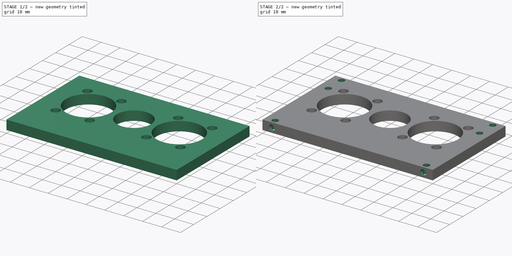
[diagram: build sequence overview — one tinted view per stage of 2, left to right]
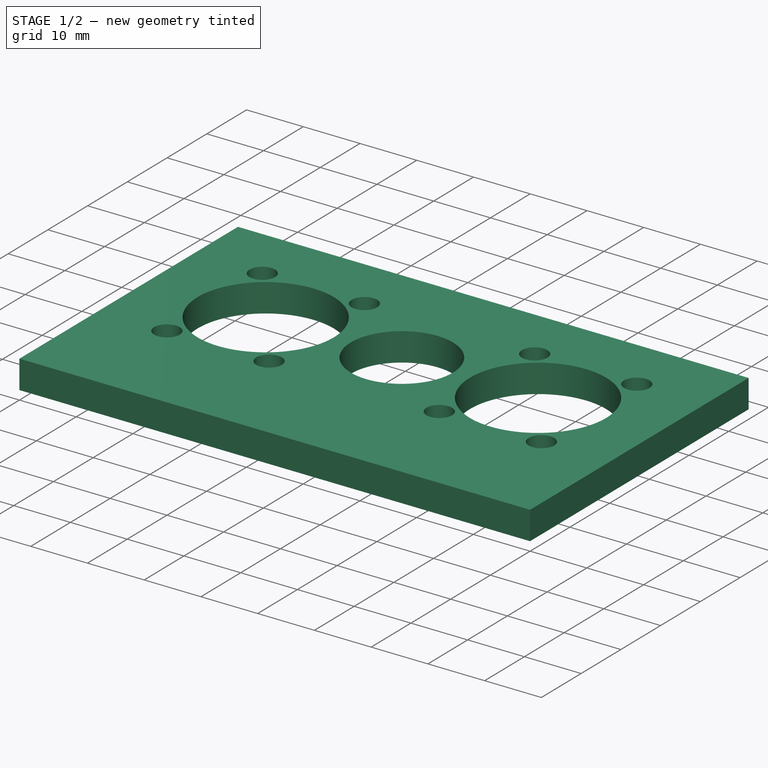
[diagram: stage 1 of 2 — iso view after this stage's code; geometry added in this stage tinted green]
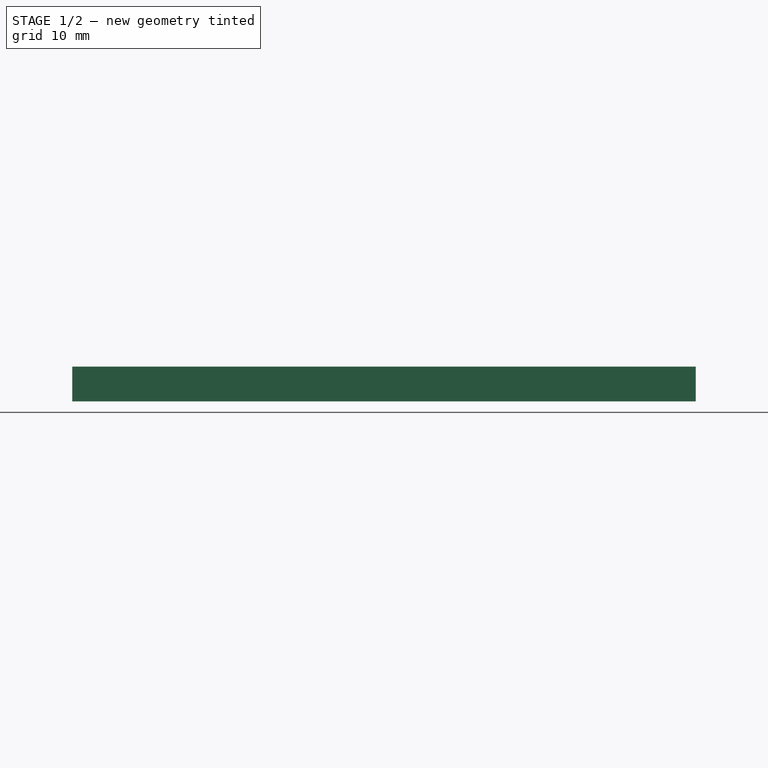
[diagram: stage 1 of 2 — front view after this stage's code; geometry added in this stage tinted green]
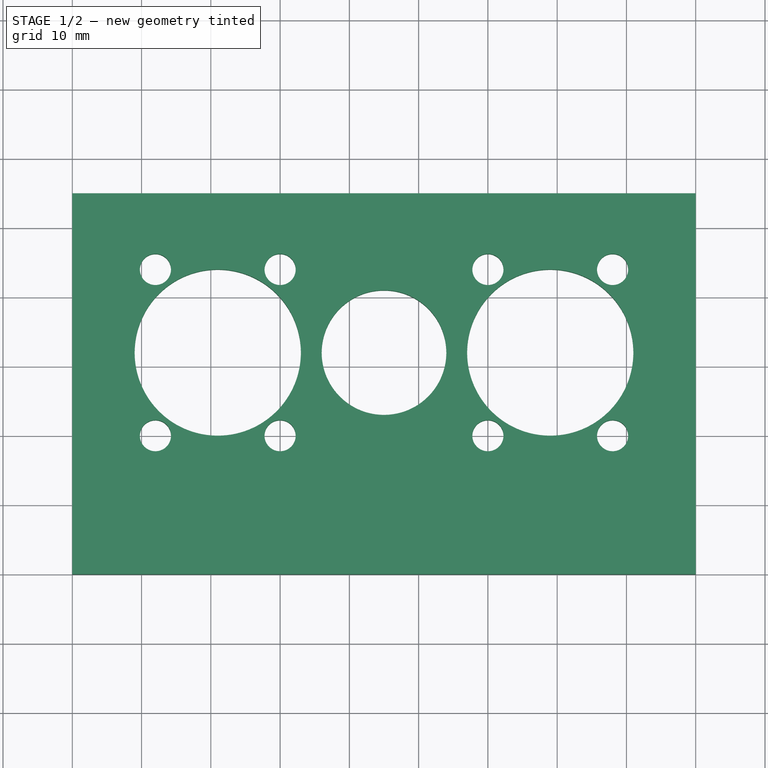
[diagram: stage 1 of 2 — top view after this stage's code; geometry added in this stage tinted green]
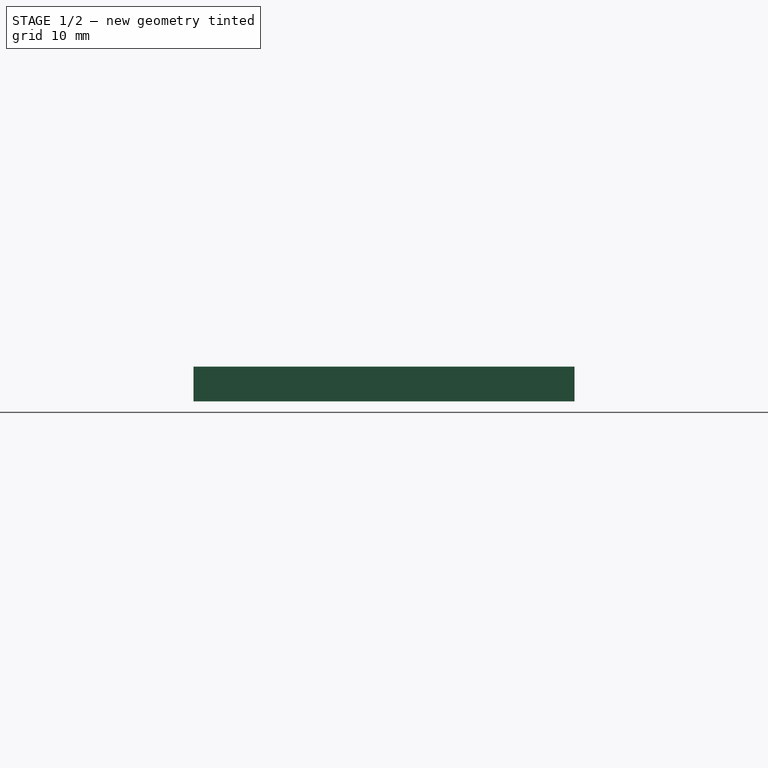
[diagram: stage 1 of 2 — right view after this stage's code; geometry added in this stage tinted green]
FCSTD DOCUMENT  (FreeCAD 0.17RUnknown)
Label: motor_plate
License: All rights reserved
LicenseURL: http://en.wikipedia.org/wiki/All_rights_reserved
objects: Sketcher::SketchObject×4, PartDesign::Pocket×3, PartDesign::Pad×1, PartDesign::Body×1
note: 13 computed .brp shape members not serialized (recipe doc carries the construction recipe); baked Part::Feature solids carry a one-line shape summary decoded from their .brp

FEATURE [Sketcher::SketchObject] Sketch
  MapMode = 5
  Support = -> [XY_Plane]
  sketch-geometry (4):
    g0: LineSegment StartX=0 StartY=0 StartZ=0 EndX=90 EndY=0 EndZ=0
    g1: LineSegment StartX=90 StartY=0 StartZ=0 EndX=90 EndY=55 EndZ=0
    g2: LineSegment StartX=90 StartY=55 StartZ=0 EndX=0 EndY=55 EndZ=0
    g3: LineSegment StartX=0 StartY=55 StartZ=0 EndX=0 EndY=0 EndZ=0
  constraints (11):
    c: Coincident(g0,g1)
    c: Coincident(g1,g2)
    c: Coincident(g2,g3)
    c: Coincident(g3,g0)
    c: Horizontal(g0)
    c: Horizontal(g2)
    c: Vertical(g1)
    c: Vertical(g3)
    c: Coincident(g0,g-1)
    c: DistanceX(g0,g0) = 90
    c: DistanceY(g3,g3) = 55
FEATURE [PartDesign::Pad] Pad
  Length = 5
  Length2 = 100
  Profile = -> Sketch
  Type = 0
FEATURE [Sketcher::SketchObject] Sketch001
  ExternalGeometry = -> [Pad]
  MapMode = 5
  Placement = pos=(0,0,5) rot=(0,0,1;0rad)
  Support = -> [Pad]
  sketch-geometry (24):
    g0: Circle CenterX=45 CenterY=32 CenterZ=0 NormalX=0 NormalY=0 NormalZ=1 AngleXU=0 Radius=9
    g1: Circle CenterX=21 CenterY=32 CenterZ=0 NormalX=0 NormalY=0 NormalZ=1 AngleXU=0 Radius=12
    g2: Circle CenterX=69 CenterY=32 CenterZ=0 NormalX=0 NormalY=0 NormalZ=1 AngleXU=0 Radius=12
    g3: LineSegment [constr] StartX=69 StartY=32 StartZ=0 EndX=21 EndY=32 EndZ=0
    g4: LineSegment [constr] StartX=21 StartY=32 StartZ=0 EndX=0 EndY=0 EndZ=0
    g5: LineSegment [constr] StartX=69 StartY=32 StartZ=0 EndX=90 EndY=0 EndZ=0
    g6: Circle [constr] CenterX=21 CenterY=32 CenterZ=0 NormalX=0 NormalY=0 NormalZ=1 AngleXU=0 Radius=15
    g7: Circle CenterX=12 CenterY=44 CenterZ=0 NormalX=0 NormalY=0 NormalZ=1 AngleXU=0 Radius=2.25
    g8: Circle CenterX=30 CenterY=44 CenterZ=0 NormalX=0 NormalY=0 NormalZ=1 AngleXU=0 Radius=2.25
    g9: Circle CenterX=30 CenterY=20 CenterZ=0 NormalX=0 NormalY=0 NormalZ=1 AngleXU=0 Radius=2.25
    g10: Circle CenterX=12 CenterY=20 CenterZ=0 NormalX=0 NormalY=0 NormalZ=1 AngleXU=0 Radius=2.25
    g11: LineSegment [constr] StartX=12 StartY=20 StartZ=0 EndX=30 EndY=20 EndZ=0
    g12: LineSegment [constr] StartX=30 StartY=20 StartZ=0 EndX=30 EndY=44 EndZ=0
    g13: LineSegment [constr] StartX=30 StartY=44 StartZ=0 EndX=12 EndY=44 EndZ=0
    g14: LineSegment [constr] StartX=12 StartY=44 StartZ=0 EndX=12 EndY=20 EndZ=0
    g15: Circle [constr] CenterX=69 CenterY=32 CenterZ=0 NormalX=0 NormalY=0 NormalZ=1 AngleXU=0 Radius=15
    g16: Circle CenterX=60 CenterY=44 CenterZ=0 NormalX=0 NormalY=0 NormalZ=1 AngleXU=0 Radius=2.25
    g17: Circle CenterX=78 CenterY=44 CenterZ=0 NormalX=0 NormalY=0 NormalZ=1 AngleXU=0 Radius=2.25
    g18: Circle CenterX=78 CenterY=20 CenterZ=0 NormalX=0 NormalY=0 NormalZ=1 AngleXU=0 Radius=2.25
    g19: Circle CenterX=60 CenterY=20 CenterZ=0 NormalX=0 NormalY=0 NormalZ=1 AngleXU=0 Radius=2.25
    g20: LineSegment [constr] StartX=60 StartY=20 StartZ=0 EndX=78 EndY=20 EndZ=0
    g21: LineSegment [constr] StartX=78 StartY=20 StartZ=0 EndX=78 EndY=44 EndZ=0
    g22: LineSegment [constr] StartX=78 StartY=44 StartZ=0 EndX=60 EndY=44 EndZ=0
    g23: LineSegment [constr] StartX=60 StartY=44 StartZ=0 EndX=60 EndY=20 EndZ=0
  constraints (60):
    c: DistanceX(g0,g2) = 24
    c: DistanceX(g1,g0) = 24
    c: Radius(g1) = 12
    c: Equal(g2,g1)
    c: Radius(g0) = 9
    c: Coincident(g4,g1)
    c: Coincident(g4,g-1)
    c: Coincident(g5,g2)
    c: Coincident(g5,g-3)
    c: Equal(g5,g4)
    c: Coincident(g3,g1)
    c: Horizontal(g3)
    c: Coincident(g3,g2)
    c: DistanceY(g-1,g1) = 32
    c: PointOnObject(g0,g3)
    c: Coincident(g6,g1)
    c: Radius(g6) = 15
    c: PointOnObject(g7,g6)
    c: PointOnObject(g8,g6)
    c: PointOnObject(g9,g6)
    c: PointOnObject(g10,g6)
    c: Coincident(g11,g10)
    c: Coincident(g11,g9)
    c: Coincident(g12,g9)
    c: Coincident(g12,g8)
    c: Coincident(g13,g8)
    c: Coincident(g13,g7)
    c: Tangent(g13,g1)
    c: Coincident(g14,g10)
    c: Horizontal(g11)
    c: Horizontal(g13)
    c: Vertical(g14)
    c: Vertical(g12)
    c: Coincident(g14,g7)
    c: Radius(g7) = 2.25
    c: Equal(g7,g8)
    c: Equal(g7,g10)
    c: Equal(g7,g9)
    c: Coincident(g15,g2)
    c: PointOnObject(g16,g15)
    c: PointOnObject(g17,g15)
    c: PointOnObject(g18,g15)
    c: PointOnObject(g19,g15)
    c: Coincident(g20,g19)
    c: Coincident(g20,g18)
    c: Coincident(g20,g21)
    c: Coincident(g21,g17)
    c: Coincident(g21,g22)
    c: Coincident(g22,g16)
    c: Tangent(g22,g2)
    c: Coincident(g22,g23)
    c: Coincident(g23,g20)
    c: Vertical(g23)
    c: Horizontal(g20)
    c: Horizontal(g22)
    c: Equal(g15,g6)
    c: Equal(g16,g17)
    c: Equal(g17,g19)
    c: Equal(g19,g18)
    c: Equal(g18,g8)
FEATURE [PartDesign::Pocket] Pocket
  BaseFeature = -> Pad
  Length = 5
  Length2 = 100
  Profile = -> Sketch001
  Type = 0
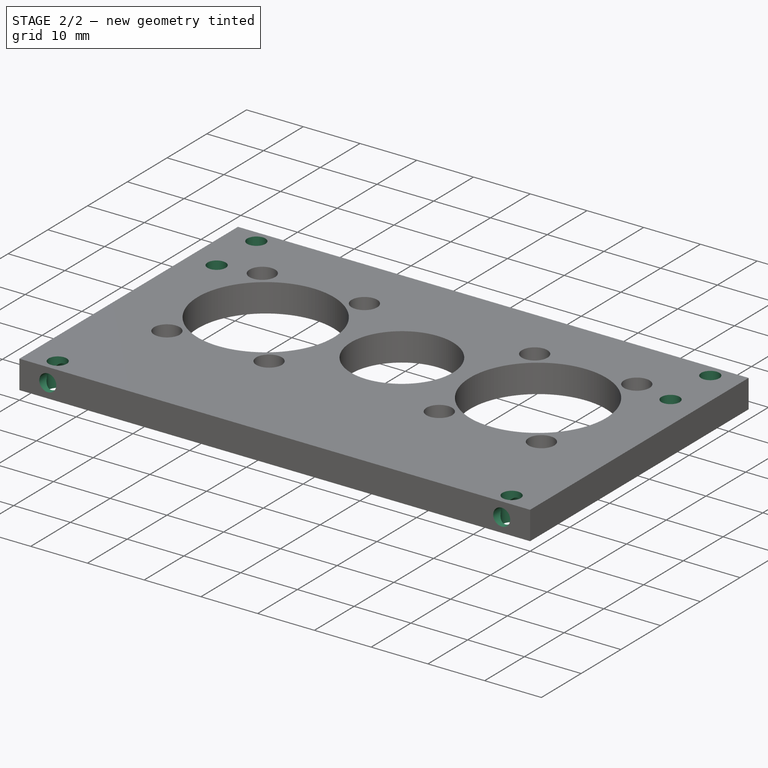
[diagram: stage 2 of 2 — iso view after this stage's code; geometry added in this stage tinted green]
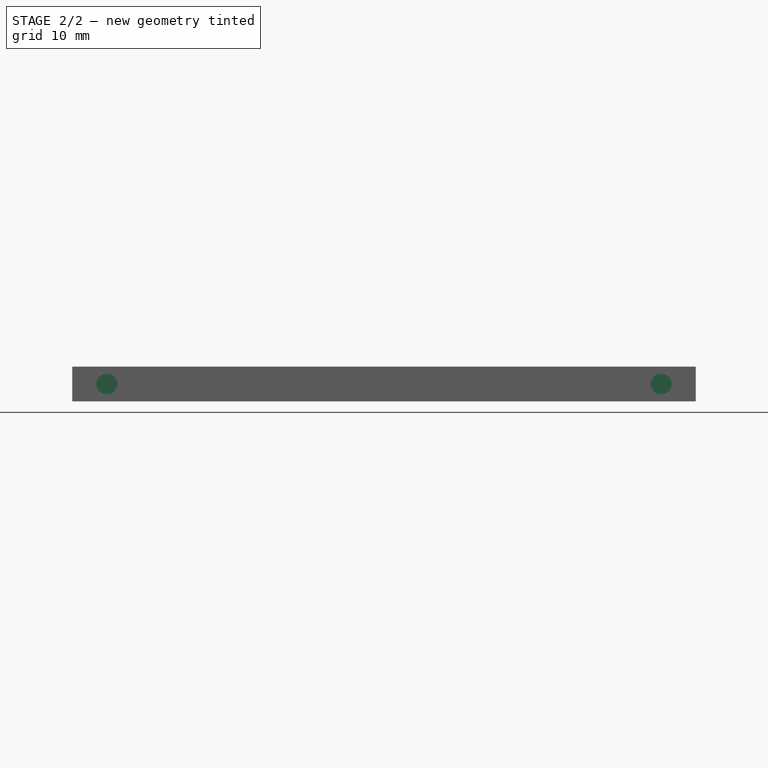
[diagram: stage 2 of 2 — front view after this stage's code; geometry added in this stage tinted green]
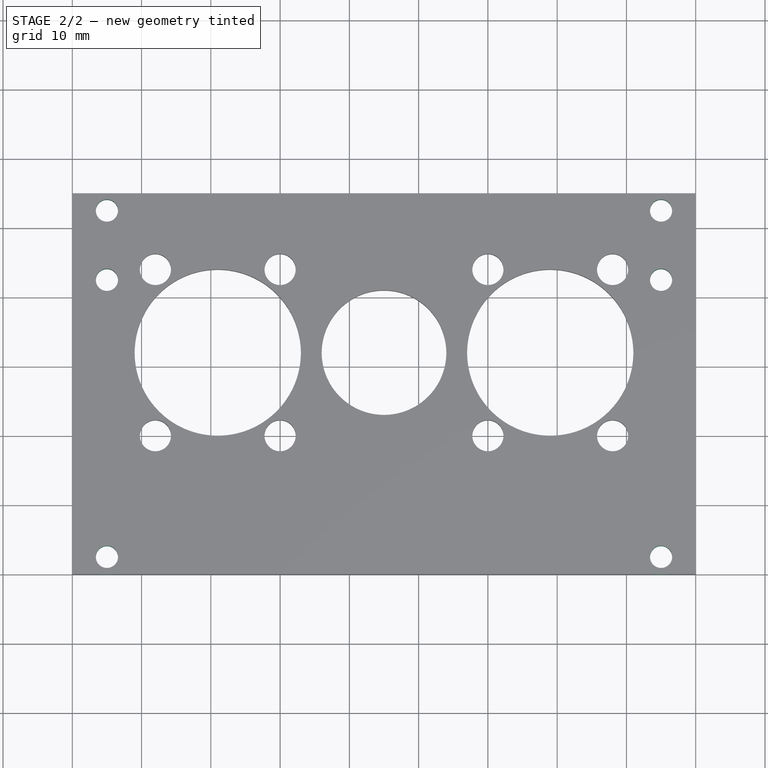
[diagram: stage 2 of 2 — top view after this stage's code; geometry added in this stage tinted green]
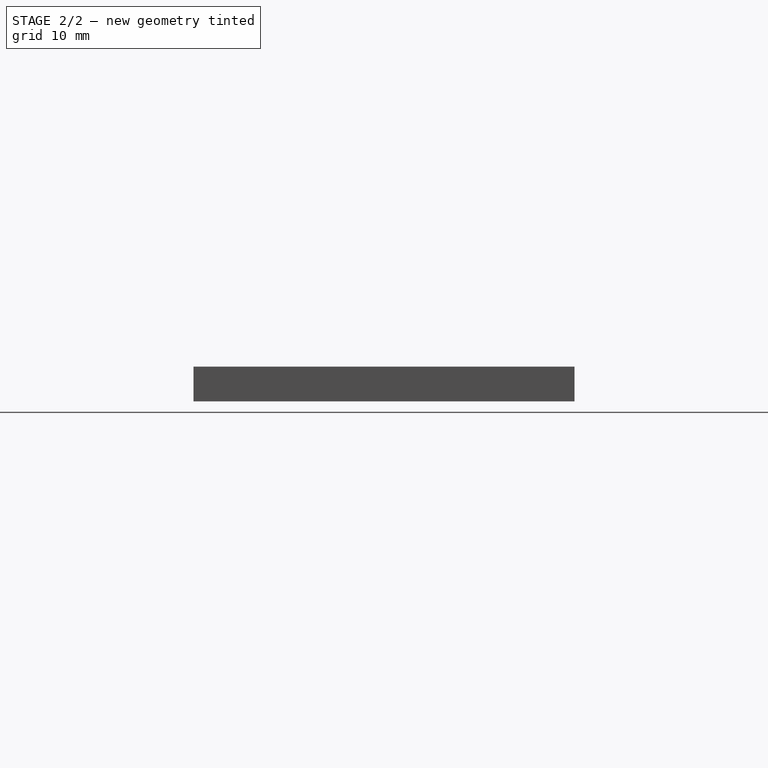
[diagram: stage 2 of 2 — right view after this stage's code; geometry added in this stage tinted green]
FEATURE [Sketcher::SketchObject] Sketch002
  ExternalGeometry = -> [Pocket]
  MapMode = 5
  Placement = pos=(0,0,5) rot=(0,0,1;0rad)
  Support = -> [Pocket]
  sketch-geometry (11):
    g0: LineSegment [constr] StartX=5 StartY=52.5 StartZ=0 EndX=85 EndY=52.5 EndZ=0
    g1: LineSegment [constr] StartX=85 StartY=52.5 StartZ=0 EndX=85 EndY=2.5 EndZ=0
    g2: LineSegment [constr] StartX=85 StartY=2.5 StartZ=0 EndX=5 EndY=2.5 EndZ=0
    g3: LineSegment [constr] StartX=5 StartY=2.5 StartZ=0 EndX=5 EndY=52.5 EndZ=0
    g4: Circle CenterX=5 CenterY=52.5 CenterZ=0 NormalX=0 NormalY=0 NormalZ=1 AngleXU=0 Radius=1.6
    g5: Circle CenterX=5 CenterY=2.5 CenterZ=0 NormalX=0 NormalY=0 NormalZ=1 AngleXU=0 Radius=1.6
    g6: Circle CenterX=85 CenterY=2.5 CenterZ=0 NormalX=0 NormalY=0 NormalZ=1 AngleXU=0 Radius=1.6
    g7: Circle CenterX=85 CenterY=52.5 CenterZ=0 NormalX=0 NormalY=0 NormalZ=1 AngleXU=0 Radius=1.6
    g8: LineSegment [constr] StartX=5 StartY=42.5 StartZ=0 EndX=85 EndY=42.5 EndZ=0
    g9: Circle CenterX=5 CenterY=42.5 CenterZ=0 NormalX=0 NormalY=0 NormalZ=1 AngleXU=0 Radius=1.6
    g10: Circle CenterX=85 CenterY=42.5 CenterZ=0 NormalX=0 NormalY=0 NormalZ=1 AngleXU=0 Radius=1.6
  constraints (28):
    c: Coincident(g0,g1)
    c: Coincident(g1,g2)
    c: Coincident(g2,g3)
    c: Coincident(g3,g0)
    c: Horizontal(g0)
    c: Horizontal(g2)
    c: Vertical(g1)
    c: Vertical(g3)
    c: Coincident(g4,g0)
    c: Coincident(g5,g2)
    c: Coincident(g6,g1)
    c: Coincident(g7,g0)
    c: PointOnObject(g8,g3)
    c: PointOnObject(g8,g1)
    c: Horizontal(g8)
    c: Coincident(g9,g8)
    c: Coincident(g10,g8)
    c: Radius(g5) = 1.6
    c: Equal(g5,g9)
    c: Equal(g5,g4)
    c: Equal(g5,g7)
    c: Equal(g5,g6)
    c: Equal(g5,g10)
    c: DistanceX(g-1,g2) = 5
    c: DistanceY(g0,g-3) = 2.5
    c: DistanceX(g0,g-3) = 5
    c: DistanceY(g-1,g2) = 2.5
    c: DistanceY(g8,g0) = 10
FEATURE [PartDesign::Pocket] Pocket001
  BaseFeature = -> Pocket
  Length = 5
  Length2 = 100
  Profile = -> Sketch002
  Type = 0
FEATURE [Sketcher::SketchObject] Sketch003
  ExternalGeometry = -> [Pocket001]
  MapMode = 5
  Placement = pos=(0,0,0) rot=(1,0,0;1.5708rad)
  Support = -> [Pocket001]
  sketch-geometry (3):
    g0: LineSegment [constr] StartX=0 StartY=2.5 StartZ=0 EndX=90 EndY=2.5 EndZ=0
    g1: Circle CenterX=85 CenterY=2.5 CenterZ=0 NormalX=0 NormalY=0 NormalZ=1 AngleXU=0 Radius=1.5
    g2: Circle CenterX=5 CenterY=2.5 CenterZ=0 NormalX=0 NormalY=0 NormalZ=1 AngleXU=0 Radius=1.5
  constraints (10):
    c: PointOnObject(g0,g-4)
    c: PointOnObject(g0,g-3)
    c: Horizontal(g0)
    c: DistanceY(g-3,g0) = 2.5
    c: PointOnObject(g1,g0)
    c: DistanceX(g-1,g2) = 5
    c: PointOnObject(g2,g0)
    c: Radius(g2) = 1.5
    c: Equal(g2,g1)
    c: DistanceX(g1,g-3) = 5
FEATURE [PartDesign::Pocket] Pocket002
  BaseFeature = -> Pocket001
  Length = 20
  Length2 = 100
  Profile = -> Sketch003
  Type = 0
FEATURE [PartDesign::Body] Body
  Group = -> [Sketch,Pad,Sketch001,Pocket,Sketch002,Pocket001,Sketch003,Pocket002]
  Origin = -> Origin
  Tip = -> Pocket002
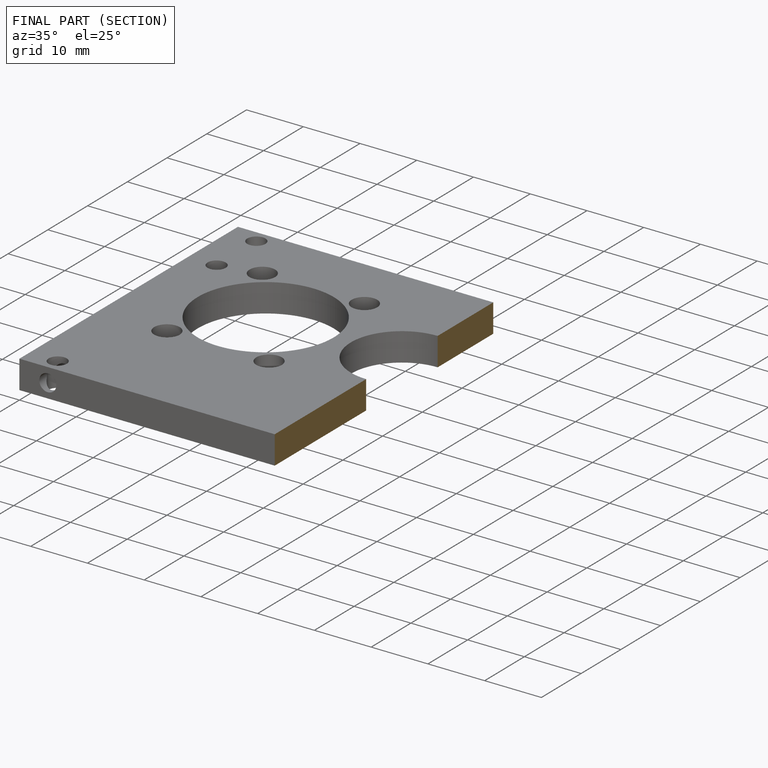
[diagram: finished part — half-section view (interior)]
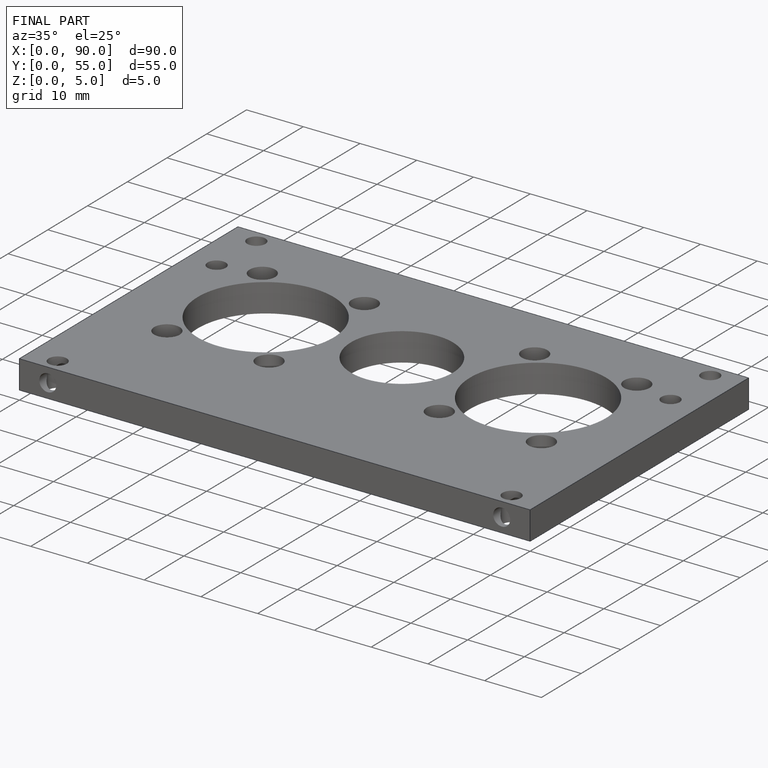
[diagram: finished part — iso view with bounding-box wireframe]
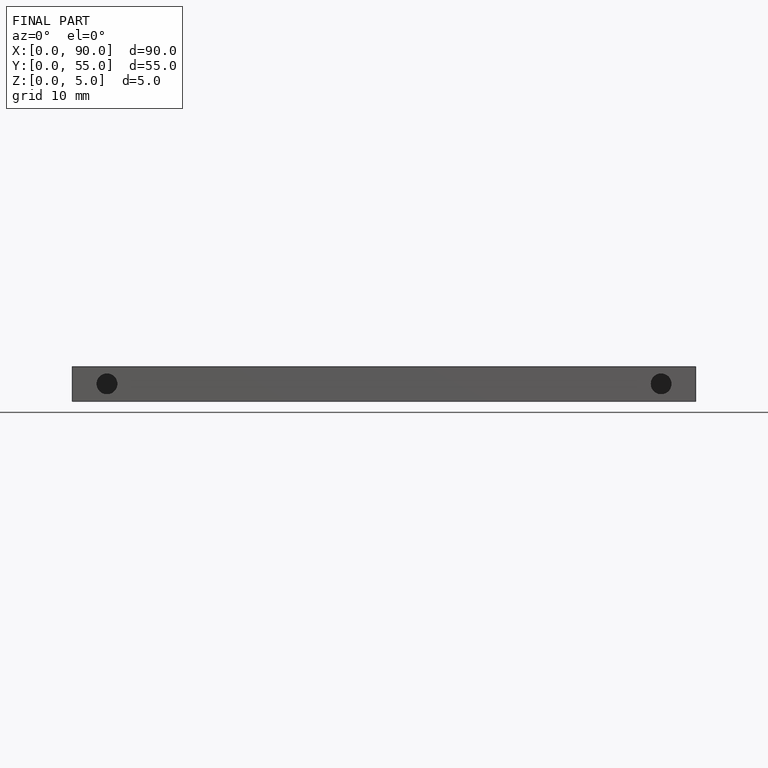
[diagram: finished part — front view with bounding-box wireframe]
